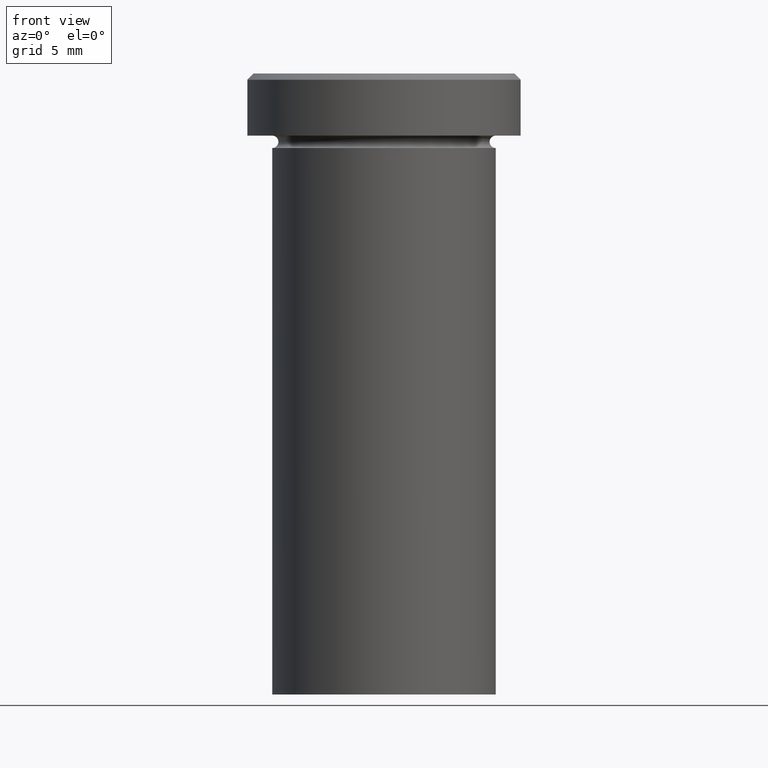
[diagram: clean part render]
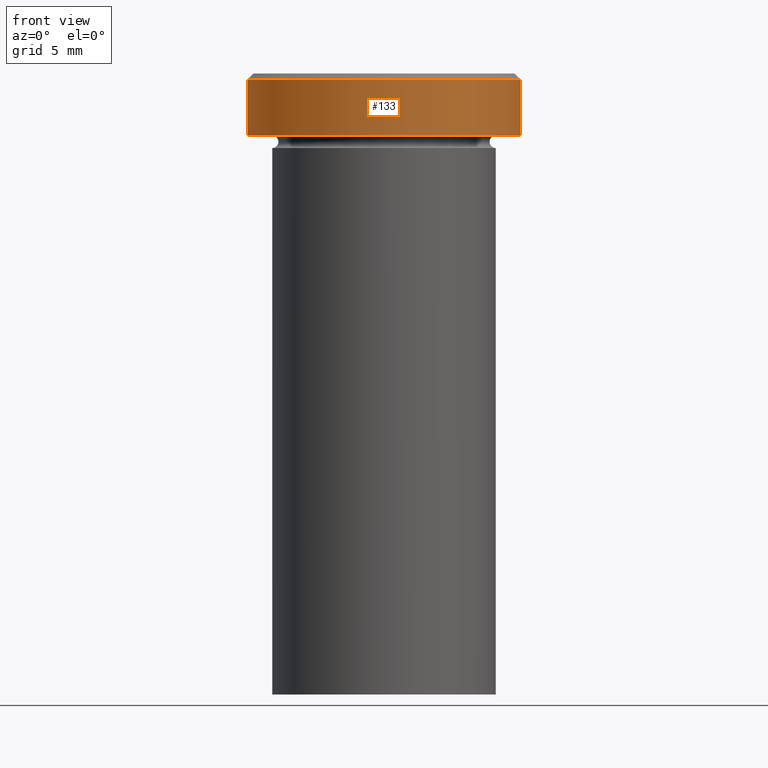
[diagram: same view with one face highlighted and labeled with its STEP entity id]
A machine part, front view. The second image highlights one B-rep face of the part: STEP entity #133.
In plain terms, the highlighted cylindrical surface (partial cylindrical patch) has radius 11 mm, axis along (-0, -0, 1).
Its self-contained STEP definition (entity closure, byte-faithful):
#33 = VERTEX_POINT ( 'NONE', #257 ) ;
#54 = CIRCLE ( 'NONE', #289, 11.00000000000000000 ) ;
#69 = ORIENTED_EDGE ( 'NONE', *, *, #104, .T. ) ;
#77 = DIRECTION ( 'NONE',  ( -0.000000000000000000, -0.000000000000000000, 1.000000000000000000 ) ) ;
#79 = CARTESIAN_POINT ( 'NONE',  ( 0.000000000000000000, 0.000000000000000000, -5.000000000000000000 ) ) ;
#85 = EDGE_CURVE ( 'NONE', #222, #33, #332, .T. ) ;
#87 = CARTESIAN_POINT ( 'NONE',  ( 11.00000000000000000, 0.000000000000000000, -5.000000000000000000 ) ) ;
#96 = ORIENTED_EDGE ( 'NONE', *, *, #85, .T. ) ;
#101 = AXIS2_PLACEMENT_3D ( 'NONE', #79, #329, #137 ) ;
#104 = EDGE_CURVE ( 'NONE', #375, #222, #268, .T. ) ;
#110 = CYLINDRICAL_SURFACE ( 'NONE', #215, 11.00000000000000000 ) ;
#120 = EDGE_LOOP ( 'NONE', ( #277, #69, #96, #193 ) ) ;
#133 = ADVANCED_FACE ( 'NONE', ( #172 ), #110, .T. ) ;
#137 = DIRECTION ( 'NONE',  ( 1.000000000000000000, 0.000000000000000000, 0.000000000000000000 ) ) ;
#172 = FACE_OUTER_BOUND ( 'NONE', #120, .T. ) ;
#182 = LINE ( 'NONE', #185, #353 ) ;
#185 = CARTESIAN_POINT ( 'NONE',  ( -11.00000000000000000, 1.347111479062088405E-15, 0.000000000000000000 ) ) ;
#193 = ORIENTED_EDGE ( 'NONE', *, *, #393, .T. ) ;
#215 = AXIS2_PLACEMENT_3D ( 'NONE', #358, #77, #293 ) ;
#222 = VERTEX_POINT ( 'NONE', #87 ) ;
#233 = DIRECTION ( 'NONE',  ( -0.000000000000000000, -0.000000000000000000, 1.000000000000000000 ) ) ;
#244 = CARTESIAN_POINT ( 'NONE',  ( -11.00000000000000000, 1.347111479062088405E-15, -0.5000000000000073275 ) ) ;
#257 = CARTESIAN_POINT ( 'NONE',  ( 11.00000000000000000, 0.000000000000000000, -0.5000000000000073275 ) ) ;
#268 = CIRCLE ( 'NONE', #101, 11.00000000000000000 ) ;
#277 = ORIENTED_EDGE ( 'NONE', *, *, #324, .F. ) ;
#284 = DIRECTION ( 'NONE',  ( 0.000000000000000000, 0.000000000000000000, -1.000000000000000000 ) ) ;
#289 = AXIS2_PLACEMENT_3D ( 'NONE', #395, #284, #354 ) ;
#291 = VECTOR ( 'NONE', #361, 1000.000000000000000 ) ;
#293 = DIRECTION ( 'NONE',  ( 1.000000000000000000, 0.000000000000000000, 0.000000000000000000 ) ) ;
#296 = CARTESIAN_POINT ( 'NONE',  ( 11.00000000000000000, 0.000000000000000000, 0.000000000000000000 ) ) ;
#308 = VERTEX_POINT ( 'NONE', #244 ) ;
#318 = CARTESIAN_POINT ( 'NONE',  ( -11.00000000000000000, 1.347111479062088405E-15, -5.000000000000000000 ) ) ;
#324 = EDGE_CURVE ( 'NONE', #375, #308, #182, .T. ) ;
#329 = DIRECTION ( 'NONE',  ( -0.000000000000000000, -0.000000000000000000, 1.000000000000000000 ) ) ;
#332 = LINE ( 'NONE', #296, #291 ) ;
#353 = VECTOR ( 'NONE', #233, 1000.000000000000000 ) ;
#354 = DIRECTION ( 'NONE',  ( 1.000000000000000000, 0.000000000000000000, 0.000000000000000000 ) ) ;
#358 = CARTESIAN_POINT ( 'NONE',  ( 0.000000000000000000, 0.000000000000000000, 0.000000000000000000 ) ) ;
#361 = DIRECTION ( 'NONE',  ( -0.000000000000000000, -0.000000000000000000, 1.000000000000000000 ) ) ;
#375 = VERTEX_POINT ( 'NONE', #318 ) ;
#393 = EDGE_CURVE ( 'NONE', #33, #308, #54, .T. ) ;
#395 = CARTESIAN_POINT ( 'NONE',  ( 0.000000000000000000, 0.000000000000000000, -0.5000000000000073275 ) ) ;